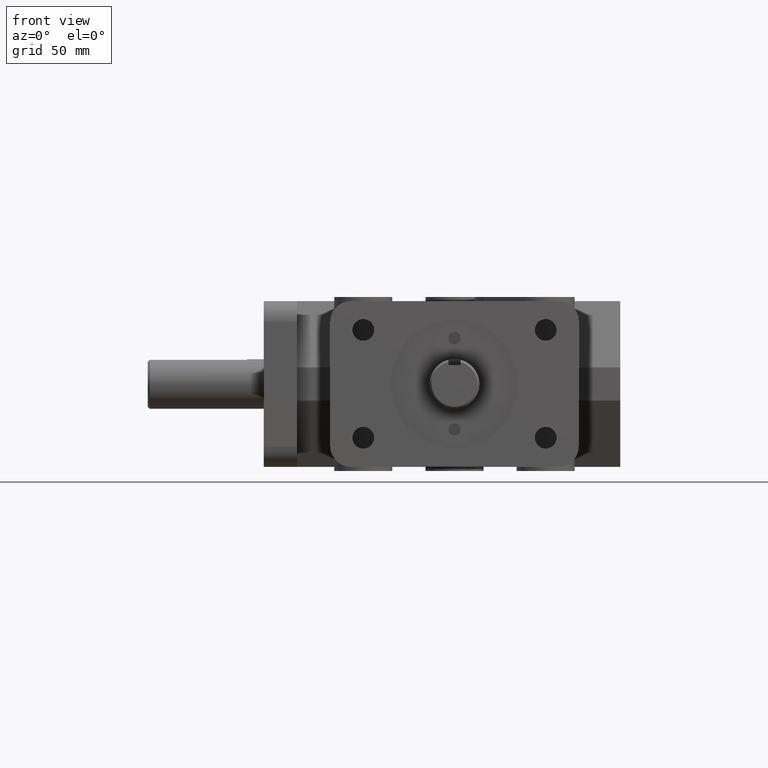
[diagram: clean part render]
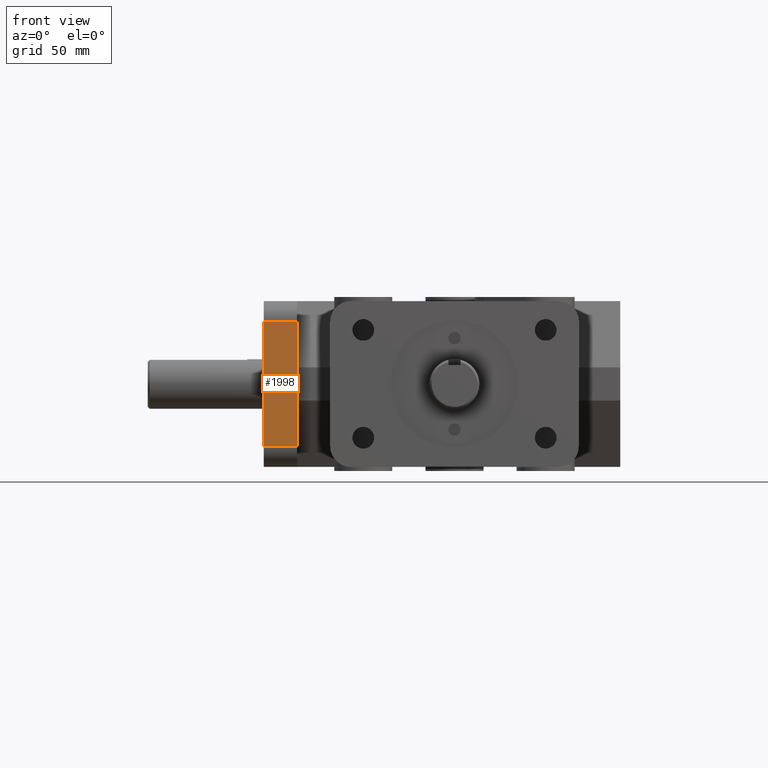
[diagram: same view with one face highlighted and labeled with its STEP entity id]
A machine part, front view. The second image highlights one B-rep face of the part: STEP entity #1998.
In plain terms, the highlighted planar face has unit normal (0, -1, 0).
Its self-contained STEP definition (entity closure, byte-faithful):
#89=LINE('',#3020,#280);
#90=LINE('',#3025,#281);
#98=LINE('',#3056,#289);
#201=LINE('',#3350,#392);
#280=VECTOR('',#2403,1.);
#281=VECTOR('',#2408,1.);
#289=VECTOR('',#2442,1.);
#392=VECTOR('',#2743,1.);
#561=FACE_OUTER_BOUND('',#702,.T.);
#702=EDGE_LOOP('',(#1745,#1746,#1747,#1748));
#899=VERTEX_POINT('',#3016);
#900=VERTEX_POINT('',#3018);
#901=VERTEX_POINT('',#3022);
#902=VERTEX_POINT('',#3024);
#1101=EDGE_CURVE('',#900,#899,#89,.T.);
#1103=EDGE_CURVE('',#901,#902,#90,.T.);
#1120=EDGE_CURVE('',#902,#900,#98,.T.);
#1261=EDGE_CURVE('',#901,#899,#201,.T.);
#1745=ORIENTED_EDGE('',*,*,#1101,.F.);
#1746=ORIENTED_EDGE('',*,*,#1120,.F.);
#1747=ORIENTED_EDGE('',*,*,#1103,.F.);
#1748=ORIENTED_EDGE('',*,*,#1261,.T.);
#1894=PLANE('',#2201);
#1998=ADVANCED_FACE('',(#561),#1894,.T.);
#2201=AXIS2_PLACEMENT_3D('',#3351,#2744,#2745);
#2403=DIRECTION('',(-1.,0.,0.));
#2408=DIRECTION('',(1.,0.,0.));
#2442=DIRECTION('',(0.,0.,-1.));
#2743=DIRECTION('',(0.,0.,-1.));
#2744=DIRECTION('center_axis',(0.,-1.,0.));
#2745=DIRECTION('ref_axis',(0.,0.,1.));
#3016=CARTESIAN_POINT('',(-2.875,2.5,-0.94));
#3018=CARTESIAN_POINT('',(-2.375,2.5,-0.94));
#3020=CARTESIAN_POINT('',(-1.4375,2.5,-0.94));
#3022=CARTESIAN_POINT('',(-2.875,2.5,0.94));
#3024=CARTESIAN_POINT('',(-2.375,2.5,0.94));
#3025=CARTESIAN_POINT('',(-1.4375,2.5,0.94));
#3056=CARTESIAN_POINT('',(-2.375,2.5,0.));
#3350=CARTESIAN_POINT('',(-2.875,2.5,0.));
#3351=CARTESIAN_POINT('Origin',(-2.875,2.5,0.));